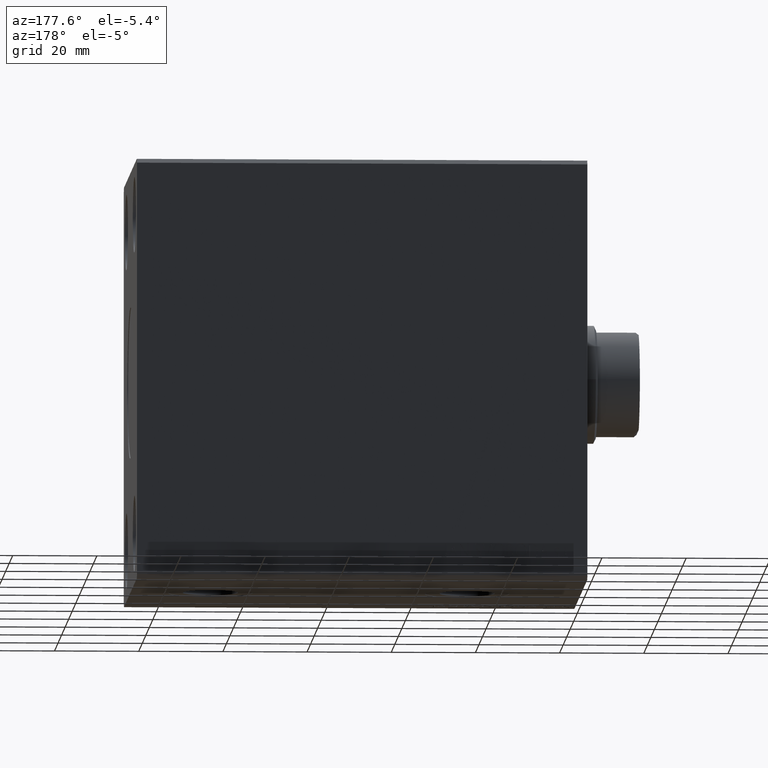
[diagram: clean part render]
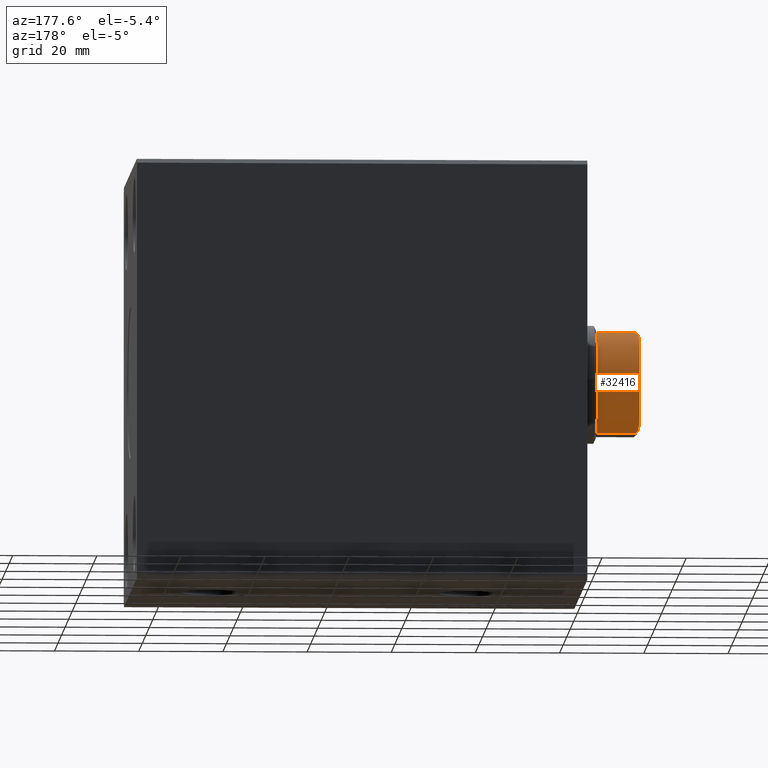
[diagram: same view with one face highlighted and labeled with its STEP entity id]
A machine part, auxiliary view. The second image highlights one B-rep face of the part: STEP entity #32416.
In plain terms, the highlighted cylindrical surface (partial cylindrical patch) has radius 12.96 mm, axis along (-1, -0, 0).
Its self-contained STEP definition (entity closure, byte-faithful):
#573 = ORIENTED_EDGE ( 'NONE', *, *, #2633, .T. ) ;
#976 = DIRECTION ( 'NONE',  ( 0.000000000000000000, 1.563149398779766955E-16, -1.000000000000000000 ) ) ;
#2373 = EDGE_CURVE ( 'NONE', #37618, #40798, #40611, .T. ) ;
#2633 = EDGE_CURVE ( 'NONE', #38301, #37618, #23807, .T. ) ;
#2807 = CIRCLE ( 'NONE', #25066, 12.96000000000000085 ) ;
#3042 = CARTESIAN_POINT ( 'NONE',  ( -11.28999999999999737, 6.363764609097346536, 73.50000000000001421 ) ) ;
#3340 = EDGE_CURVE ( 'NONE', #15778, #40798, #41668, .T. ) ;
#3806 = ORIENTED_EDGE ( 'NONE', *, *, #14310, .T. ) ;
#6318 = CARTESIAN_POINT ( 'NONE',  ( 0.000000000000000000, -9.925998682251518882E-15, 63.50000000000000000 ) ) ;
#7230 = VERTEX_POINT ( 'NONE', #27771 ) ;
#9685 = DIRECTION ( 'NONE',  ( -0.000000000000000000, -1.563149398779766955E-16, 1.000000000000000000 ) ) ;
#12033 = AXIS2_PLACEMENT_3D ( 'NONE', #37275, #26687, #33910 ) ;
#12356 = CARTESIAN_POINT ( 'NONE',  ( -12.00000000000000000, 4.895058733049062916, 72.79000000000003467 ) ) ;
#12367 = CARTESIAN_POINT ( 'NONE',  ( 11.28999999999999737, 6.363764609097346536, 73.50000000000001421 ) ) ;
#12714 = VERTEX_POINT ( 'NONE', #28478 ) ;
#13178 = CYLINDRICAL_SURFACE ( 'NONE', #12033, 12.96000000000000085 ) ;
#13188 = CARTESIAN_POINT ( 'NONE',  ( -12.00000000000000000, 4.895058733049064692, 63.50000000000000000 ) ) ;
#14186 = VECTOR ( 'NONE', #976, 1000.000000000000000 ) ;
#14310 = EDGE_CURVE ( 'NONE', #15778, #35809, #28532, .T. ) ;
#14474 = CARTESIAN_POINT ( 'NONE',  ( 12.00000000000000000, 4.895058733049062916, 73.50000000000001421 ) ) ;
#15778 = VERTEX_POINT ( 'NONE', #43011 ) ;
#17184 = ORIENTED_EDGE ( 'NONE', *, *, #2373, .T. ) ;
#23807 = LINE ( 'NONE', #30807, #38044 ) ;
#24639 = CARTESIAN_POINT ( 'NONE',  ( -12.00000000000000000, 4.895058733049062916, 72.79000000000003467 ) ) ;
#25066 = AXIS2_PLACEMENT_3D ( 'NONE', #29424, #30087, #26688 ) ;
#25189 = EDGE_CURVE ( 'NONE', #7230, #38301, #32774, .T. ) ;
#25929 = CARTESIAN_POINT ( 'NONE',  ( 12.00000000000000000, 4.895058733049062916, 72.79000000000003467 ) ) ;
#26687 = DIRECTION ( 'NONE',  ( -0.000000000000000000, -1.563149398779766955E-16, 1.000000000000000000 ) ) ;
#26688 = DIRECTION ( 'NONE',  ( 0.000000000000000000, -1.000000000000000000, 0.000000000000000000 ) ) ;
#27008 = AXIS2_PLACEMENT_3D ( 'NONE', #6318, #9685, #36921 ) ;
#27771 = CARTESIAN_POINT ( 'NONE',  ( 0.000000000000000000, 12.95999999999999019, 63.50000000000000000 ) ) ;
#28478 = CARTESIAN_POINT ( 'NONE',  ( 12.00000000000000000, 4.895058733049064692, 63.50000000000000000 ) ) ;
#28532 =( BOUNDED_CURVE ( )  B_SPLINE_CURVE ( 3, ( #12367, #33975, #30371, #29706 ),
 .UNSPECIFIED., .F., .F. ) 
 B_SPLINE_CURVE_WITH_KNOTS ( ( 4, 4 ),
 ( 2.628319538699809055, 2.754276052701139843 ),
 .UNSPECIFIED. ) 
 CURVE ( )  GEOMETRIC_REPRESENTATION_ITEM ( )  RATIONAL_B_SPLINE_CURVE ( ( 1.000000000000000000, 0.9986783499690946586, 0.9986783499690946586, 1.000000000000000000 ) ) 
 REPRESENTATION_ITEM ( '' )  );
#28812 = CARTESIAN_POINT ( 'NONE',  ( -11.28999999999999737, 6.363764609097346536, 73.50000000000001421 ) ) ;
#28849 = ORIENTED_EDGE ( 'NONE', *, *, #3340, .F. ) ;
#29171 = EDGE_CURVE ( 'NONE', #35809, #12714, #32490, .T. ) ;
#29424 = CARTESIAN_POINT ( 'NONE',  ( 0.000000000000000000, -9.925998682251518882E-15, 63.50000000000000000 ) ) ;
#29706 = CARTESIAN_POINT ( 'NONE',  ( 12.00000000000000000, 4.895058733049062916, 72.79000000000003467 ) ) ;
#30087 = DIRECTION ( 'NONE',  ( -0.000000000000000000, -1.563149398779766955E-16, 1.000000000000000000 ) ) ;
#30371 = CARTESIAN_POINT ( 'NONE',  ( 11.79434251320818738, 5.399218126447094868, 72.99565748679182775 ) ) ;
#30807 = CARTESIAN_POINT ( 'NONE',  ( -12.00000000000000000, 4.895058733049062916, 73.50000000000001421 ) ) ;
#31034 = DIRECTION ( 'NONE',  ( 0.000000000000000000, -1.000000000000000000, 0.000000000000000000 ) ) ;
#31127 = ORIENTED_EDGE ( 'NONE', *, *, #29171, .T. ) ;
#31773 = ORIENTED_EDGE ( 'NONE', *, *, #37519, .T. ) ;
#32416 = ADVANCED_FACE ( 'NONE', ( #36830 ), #13178, .T. ) ;
#32490 = LINE ( 'NONE', #14474, #14186 ) ;
#32774 = CIRCLE ( 'NONE', #27008, 12.96000000000000085 ) ;
#32863 = ORIENTED_EDGE ( 'NONE', *, *, #25189, .T. ) ;
#33910 = DIRECTION ( 'NONE',  ( 0.000000000000000000, -1.000000000000000000, 0.000000000000000000 ) ) ;
#33975 = CARTESIAN_POINT ( 'NONE',  ( 11.55736264208753106, 5.889434646475369739, 73.23263735791248052 ) ) ;
#34197 = DIRECTION ( 'NONE',  ( -0.000000000000000000, -1.563149398779766955E-16, 1.000000000000000000 ) ) ;
#35809 = VERTEX_POINT ( 'NONE', #25929 ) ;
#36830 = FACE_OUTER_BOUND ( 'NONE', #44241, .T. ) ;
#36921 = DIRECTION ( 'NONE',  ( 0.000000000000000000, -1.000000000000000000, 0.000000000000000000 ) ) ;
#37275 = CARTESIAN_POINT ( 'NONE',  ( 0.000000000000000000, -1.148914808103128781E-14, 73.50000000000001421 ) ) ;
#37519 = EDGE_CURVE ( 'NONE', #12714, #7230, #2807, .T. ) ;
#37548 = DIRECTION ( 'NONE',  ( -0.000000000000000000, -1.563149398779766955E-16, 1.000000000000000000 ) ) ;
#37618 = VERTEX_POINT ( 'NONE', #24639 ) ;
#38044 = VECTOR ( 'NONE', #37548, 1000.000000000000000 ) ;
#38301 = VERTEX_POINT ( 'NONE', #13188 ) ;
#38717 = CARTESIAN_POINT ( 'NONE',  ( -11.79434251320818916, 5.399218126447091315, 72.99565748679182775 ) ) ;
#40611 =( BOUNDED_CURVE ( )  B_SPLINE_CURVE ( 3, ( #12356, #38717, #42985, #28812 ),
 .UNSPECIFIED., .F., .F. ) 
 B_SPLINE_CURVE_WITH_KNOTS ( ( 4, 4 ),
 ( 3.528909254478446389, 3.654865768479777177 ),
 .UNSPECIFIED. ) 
 CURVE ( )  GEOMETRIC_REPRESENTATION_ITEM ( )  RATIONAL_B_SPLINE_CURVE ( ( 1.000000000000000000, 0.9986783499690946586, 0.9986783499690946586, 1.000000000000000000 ) ) 
 REPRESENTATION_ITEM ( '' )  );
#40798 = VERTEX_POINT ( 'NONE', #3042 ) ;
#41668 = CIRCLE ( 'NONE', #44525, 12.96000000000000085 ) ;
#41826 = CARTESIAN_POINT ( 'NONE',  ( 0.000000000000000000, -1.148914808103128781E-14, 73.50000000000001421 ) ) ;
#42985 = CARTESIAN_POINT ( 'NONE',  ( -11.55736264208753106, 5.889434646475367074, 73.23263735791248052 ) ) ;
#43011 = CARTESIAN_POINT ( 'NONE',  ( 11.28999999999999737, 6.363764609097346536, 73.50000000000001421 ) ) ;
#44241 = EDGE_LOOP ( 'NONE', ( #28849, #3806, #31127, #31773, #32863, #573, #17184 ) ) ;
#44525 = AXIS2_PLACEMENT_3D ( 'NONE', #41826, #34197, #31034 ) ;